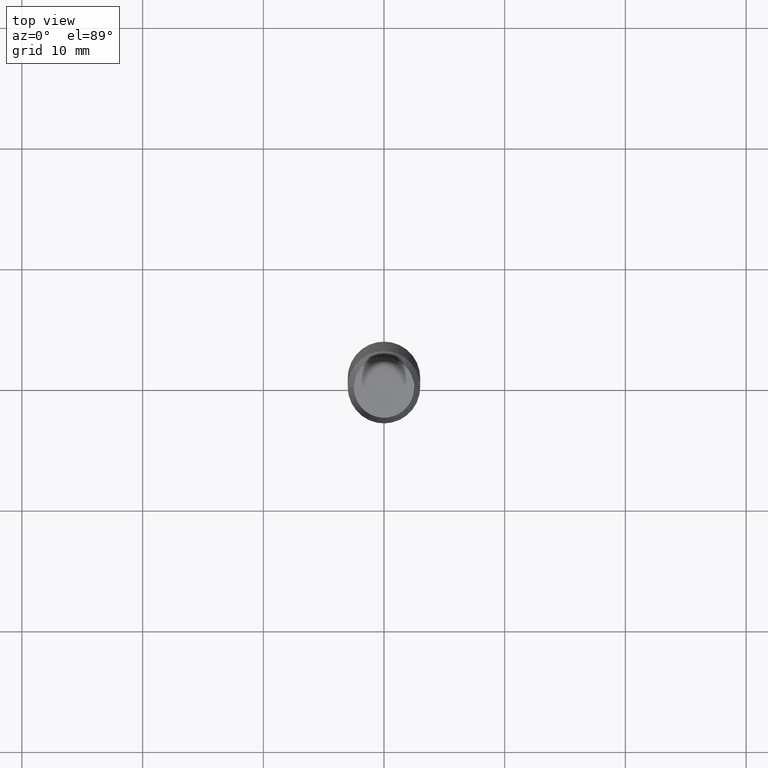
[diagram: clean part render]
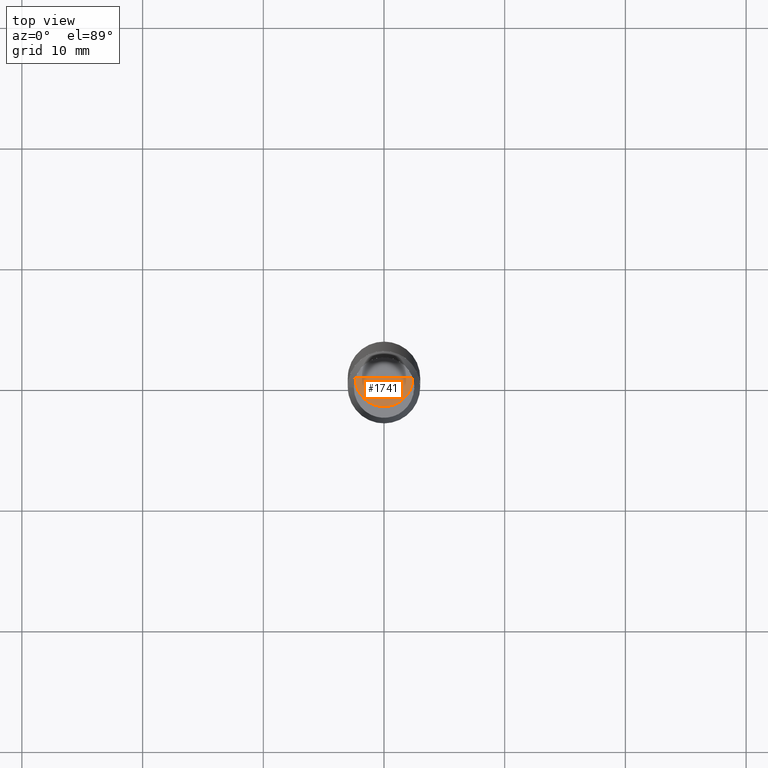
[diagram: same view with one face highlighted and labeled with its STEP entity id]
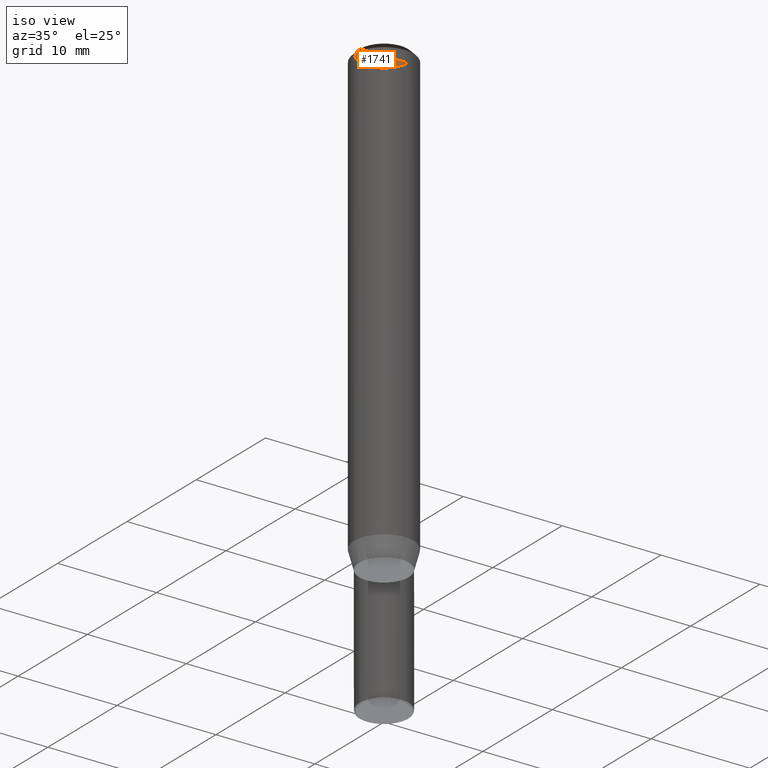
[diagram: same view with one face highlighted and labeled with its STEP entity id]
A machine part, top view. The second image highlights one B-rep face of the part: STEP entity #1741.
A second angle (iso view) of the same face is appended — the face is thin or edge-on in the first view.
In plain terms, the highlighted face is a freeform B-spline surface patch.
Its self-contained STEP definition (entity closure, byte-faithful):
#1386=CARTESIAN_POINT('',(2.4,0.0,45.133974596216));
#1390=CARTESIAN_POINT('',(-2.4,0.0,45.133974596216));
#1391=CARTESIAN_POINT('',(0.0,0.0,45.133974596216));
#1398=CARTESIAN_POINT('',(-2.4,-2.4,45.133974596216));
#1399=CARTESIAN_POINT('',(0.0,-2.4,45.133974596216));
#1400=CARTESIAN_POINT('',(2.4,-2.4,45.133974596216));
#1726=(
BOUNDED_SURFACE()
B_SPLINE_SURFACE(1,2,(
(#1390,#1398,#1399,#1400,#1386),
(#1391,#1391,#1391,#1391,#1391)
), .UNSPECIFIED.,.F.,.F.,.F.)
B_SPLINE_SURFACE_WITH_KNOTS((2,2),(3,2,3),(
0.0,1.0),(
0.0,0.5,1.0), .UNSPECIFIED.)
GEOMETRIC_REPRESENTATION_ITEM()
RATIONAL_B_SPLINE_SURFACE(((1.0,0.707106781187,1.0,0.707106781187,1.0),
(1.0,0.707106781187,1.0,0.707106781187,1.0)
))
REPRESENTATION_ITEM('')
SURFACE()
);
#1727=(
BOUNDED_CURVE()
B_SPLINE_CURVE(1,(#1391,#1386),.UNSPECIFIED.,.F.,.F.)
B_SPLINE_CURVE_WITH_KNOTS((2,2),
(0.0,1.0),.UNSPECIFIED.)
CURVE()
GEOMETRIC_REPRESENTATION_ITEM()
RATIONAL_B_SPLINE_CURVE((1.0,1.0))
REPRESENTATION_ITEM('')
);
#1728=(
BOUNDED_CURVE()
B_SPLINE_CURVE(2,(#1386,#1400,#1399,#1398,#1390),.UNSPECIFIED.,.F.,.F.)
B_SPLINE_CURVE_WITH_KNOTS((3,2,3),
(0.0,0.5,1.0),.UNSPECIFIED.)
CURVE()
GEOMETRIC_REPRESENTATION_ITEM()
RATIONAL_B_SPLINE_CURVE((1.0,0.707106781187,1.0,0.707106781187,1.0))
REPRESENTATION_ITEM('')
);
#1729=(
BOUNDED_CURVE()
B_SPLINE_CURVE(1,(#1390,#1391),.UNSPECIFIED.,.F.,.F.)
B_SPLINE_CURVE_WITH_KNOTS((2,2),
(0.0,1.0),.UNSPECIFIED.)
CURVE()
GEOMETRIC_REPRESENTATION_ITEM()
RATIONAL_B_SPLINE_CURVE((1.0,1.0))
REPRESENTATION_ITEM('')
);
#1730=VERTEX_POINT('',#1386);
#1731=VERTEX_POINT('',#1390);
#1732=VERTEX_POINT('',#1391);
#1733=EDGE_CURVE('',#1732,#1730,#1727,.T.);
#1734=EDGE_CURVE('',#1730,#1731,#1728,.T.);
#1735=EDGE_CURVE('',#1731,#1732,#1729,.T.);
#1736=ORIENTED_EDGE('',*,*,#1733,.T.);
#1737=ORIENTED_EDGE('',*,*,#1734,.T.);
#1738=ORIENTED_EDGE('',*,*,#1735,.T.);
#1739=EDGE_LOOP('',(#1736,#1737,#1738));
#1740=FACE_OUTER_BOUND('',#1739,.T.);
#1741=ADVANCED_FACE('',(#1740),#1726,.T.);